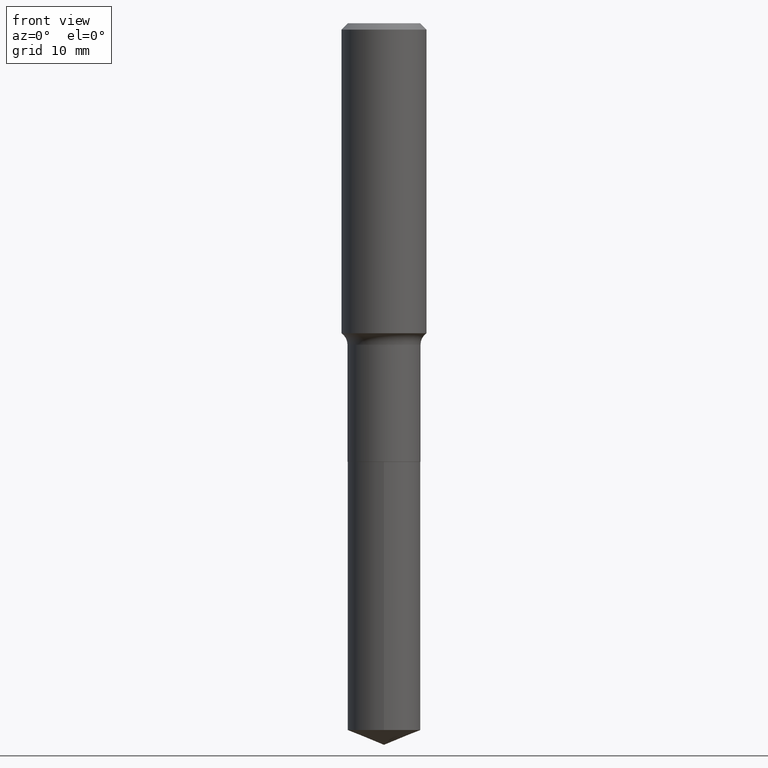
[diagram: clean part render]
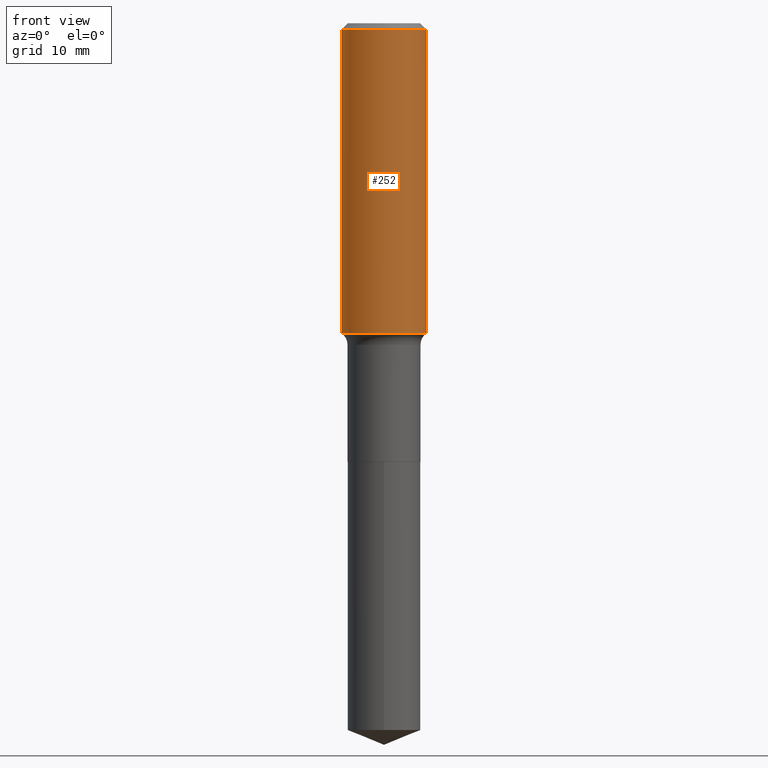
[diagram: same view with one face highlighted and labeled with its STEP entity id]
A machine part, front view. The second image highlights one B-rep face of the part: STEP entity #252.
In plain terms, the highlighted cylindrical surface (partial cylindrical patch) has radius 5.9995 mm, axis along (-0, 0, 1).
Its self-contained STEP definition (entity closure, byte-faithful):
#26 = VERTEX_POINT ( 'NONE', #417 ) ;
#42 = VECTOR ( 'NONE', #198, 39.37007874015748143 ) ;
#44 = CARTESIAN_POINT ( 'NONE',  ( -0.2362000000000002153, -4.346665305163778709E-15, -1.725619203517045674 ) ) ;
#67 = CARTESIAN_POINT ( 'NONE',  ( 8.664295980313996991E-31, -1.237031838352134818E-16, -0.03543000000000023908 ) ) ;
#71 = CIRCLE ( 'NONE', #477, 0.2361999999999999933 ) ;
#88 = DIRECTION ( 'NONE',  ( -2.445468806185136597E-29, 3.491481338843145583E-15, 1.000000000000000000 ) ) ;
#109 = VERTEX_POINT ( 'NONE', #270 ) ;
#119 = EDGE_CURVE ( 'NONE', #26, #476, #71, .T. ) ;
#128 = LINE ( 'NONE', #452, #42 ) ;
#131 = FACE_OUTER_BOUND ( 'NONE', #395, .T. ) ;
#153 = EDGE_CURVE ( 'NONE', #109, #476, #128, .T. ) ;
#154 = ORIENTED_EDGE ( 'NONE', *, *, #119, .F. ) ;
#162 = DIRECTION ( 'NONE',  ( 1.000000000000000000, -6.982962677686265922E-15, 0.000000000000000000 ) ) ;
#167 = DIRECTION ( 'NONE',  ( 1.000000000000000000, -6.982962677686266711E-15, 4.876176775795936353E-29 ) ) ;
#168 = VERTEX_POINT ( 'NONE', #44 ) ;
#178 = DIRECTION ( 'NONE',  ( -2.445468806185136877E-29, 3.491481338843145188E-15, 1.000000000000000000 ) ) ;
#195 = DIRECTION ( 'NONE',  ( 1.000000000000000000, -6.982962677686266711E-15, 0.000000000000000000 ) ) ;
#196 = AXIS2_PLACEMENT_3D ( 'NONE', #419, #88, #167 ) ;
#198 = DIRECTION ( 'NONE',  ( -2.445468806185136877E-29, 3.491481338843145188E-15, 1.000000000000000000 ) ) ;
#244 = CARTESIAN_POINT ( 'NONE',  ( 0.2361999999999999933, -1.773078968304709711E-15, -0.03543000000000023908 ) ) ;
#252 = ADVANCED_FACE ( 'NONE', ( #131 ), #267, .T. ) ;
#263 = CARTESIAN_POINT ( 'NONE',  ( 4.219947933554975725E-29, -6.024967247029136681E-15, -1.725619203517045674 ) ) ;
#267 = CYLINDRICAL_SURFACE ( 'NONE', #196, 0.2362000000000001321 ) ;
#270 = CARTESIAN_POINT ( 'NONE',  ( 0.2362000000000002153, -7.674343031498633206E-15, -1.725619203517045674 ) ) ;
#314 = ORIENTED_EDGE ( 'NONE', *, *, #426, .T. ) ;
#330 = VECTOR ( 'NONE', #178, 39.37007874015748143 ) ;
#343 = EDGE_CURVE ( 'NONE', #168, #26, #396, .T. ) ;
#344 = DIRECTION ( 'NONE',  ( -2.445468806185136597E-29, 3.491481338843145583E-15, 1.000000000000000000 ) ) ;
#359 = CARTESIAN_POINT ( 'NONE',  ( -0.2362000000000001321, 1.678301941865357577E-15, -1.161852468318209457E-29 ) ) ;
#376 = CIRCLE ( 'NONE', #413, 0.2362000000000002431 ) ;
#395 = EDGE_LOOP ( 'NONE', ( #441, #314, #402, #154 ) ) ;
#396 = LINE ( 'NONE', #359, #330 ) ;
#402 = ORIENTED_EDGE ( 'NONE', *, *, #153, .T. ) ;
#413 = AXIS2_PLACEMENT_3D ( 'NONE', #263, #344, #162 ) ;
#417 = CARTESIAN_POINT ( 'NONE',  ( -0.2361999999999999933, -1.396033273566817159E-15, -0.03543000000000023908 ) ) ;
#419 = CARTESIAN_POINT ( 'NONE',  ( 0.000000000000000000, 0.000000000000000000, 0.000000000000000000 ) ) ;
#426 = EDGE_CURVE ( 'NONE', #168, #109, #376, .T. ) ;
#441 = ORIENTED_EDGE ( 'NONE', *, *, #343, .F. ) ;
#442 = DIRECTION ( 'NONE',  ( -2.445468806185136597E-29, 3.491481338843145583E-15, 1.000000000000000000 ) ) ;
#452 = CARTESIAN_POINT ( 'NONE',  ( 0.2362000000000001321, -1.649375784469497117E-15, 1.151752954443000789E-29 ) ) ;
#476 = VERTEX_POINT ( 'NONE', #244 ) ;
#477 = AXIS2_PLACEMENT_3D ( 'NONE', #67, #442, #195 ) ;